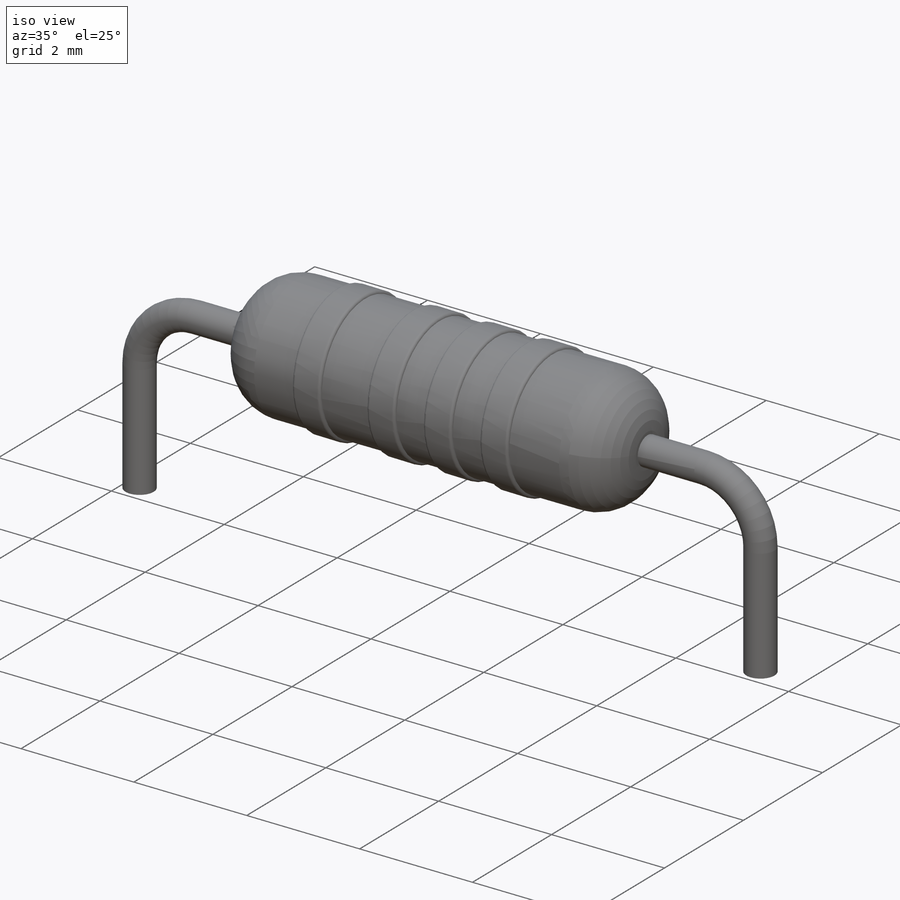
[diagram: iso view]
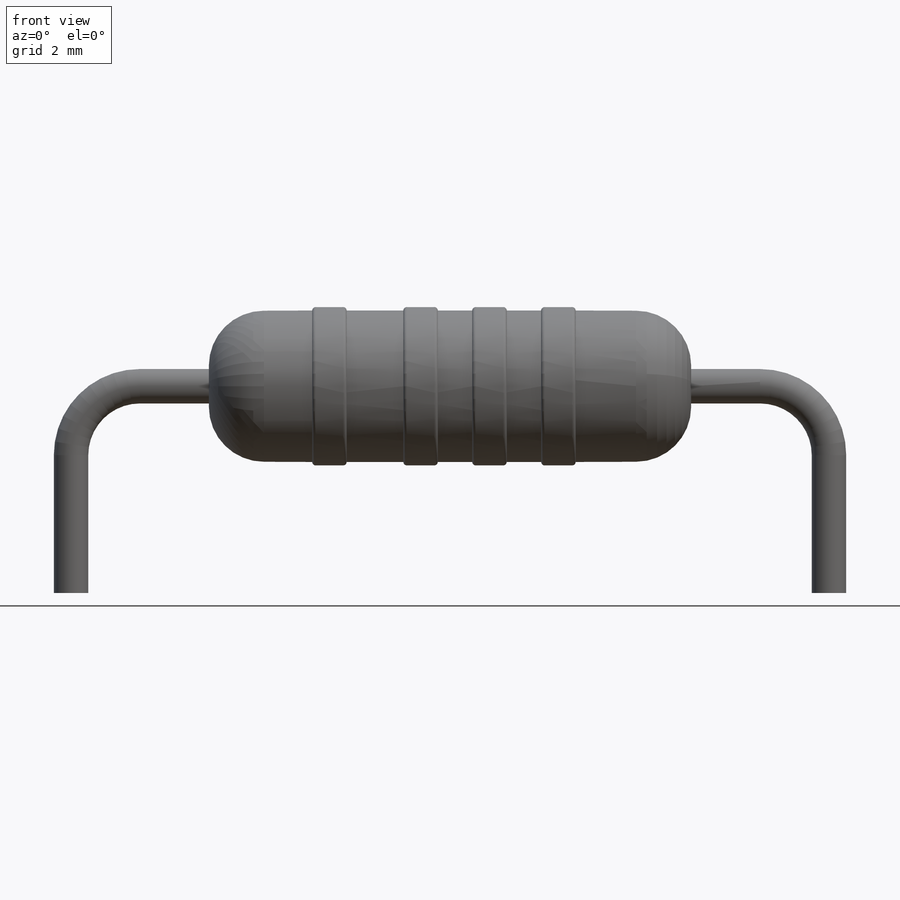
[diagram: front view]
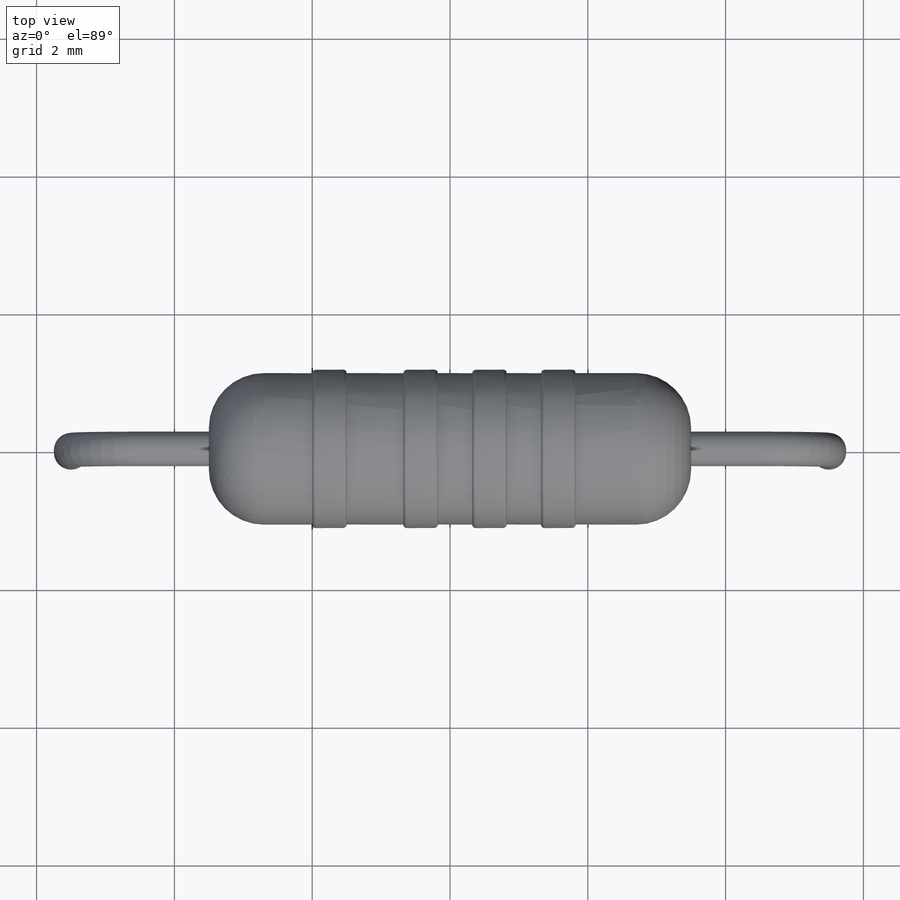
[diagram: top view]
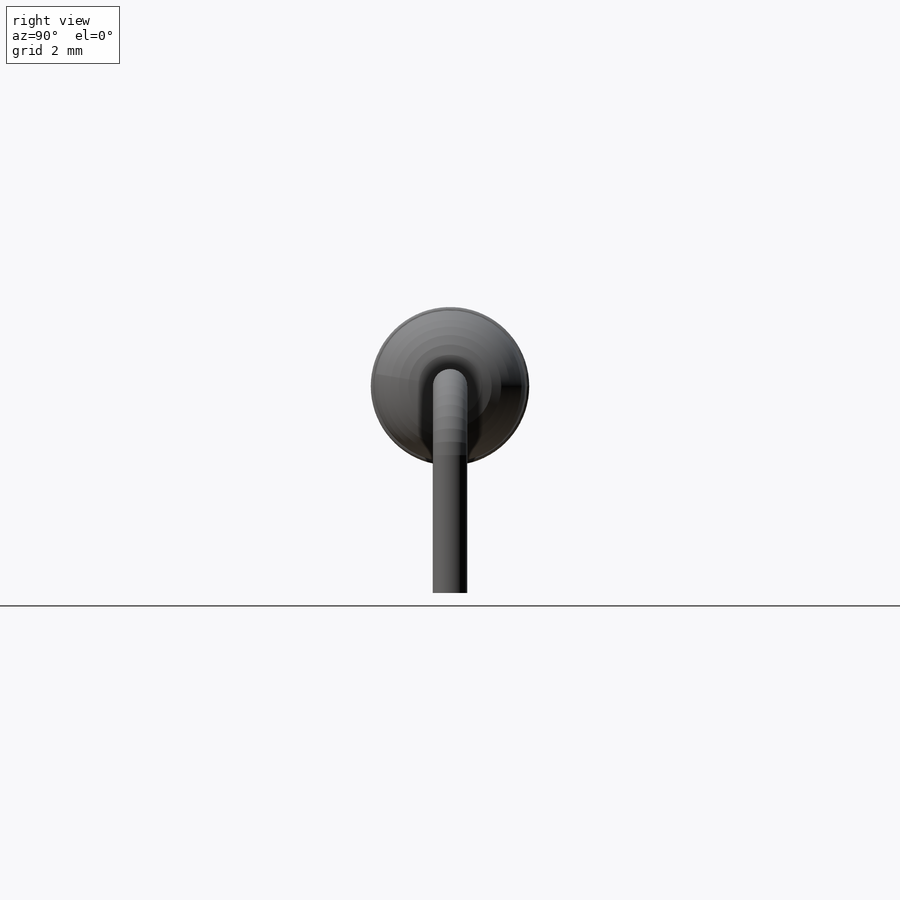
[diagram: right view]
SOLIDWORKS PART (.sldprt)
format: sldprt  version: not decoded by parser v0  size: 351,232 bytes
history: native  units: mm
features: plane x4, sketch x4, revolve x2, material x1, fillet x1, sweep x1, mirror x1 (+8 scaffold rows collapsed)
feature tree (22):
  scaffold x8  (default folders/planes/origin — collapsed)
  material  "Matériau <non spécifié>"
  plane  "Face"
  plane  "Dessus"
  plane  "Droite"
  sketch  "Esquisse1"  dims[D1=0.8mm]
  revolve  "Base-Révolution"  Angle=360deg
  sketch  "Esquisse2"  dims[c1.D1=1.0mm c1.D2=1.0mm c2.D1=0.25mm c2.D2=0.25mm]
  revolve  "Boss.-Révol.1"  Angle=360deg
  fillet  "Congé1"  Radius=0.05mm
  sketch  "Esquisse3"  dims[D1=~0.230252mm]
  sketch  "Esquisse4"  dims[D3=1.0mm D1=3.0mm D2=5.5mm]
  sweep  "Balayage1"
  plane  "Plan1"
  mirror  "Symétrie1"
decode coverage: 7 of 9 modeling features carry decoded parameters
note: ~ marks probable driven/reference dimensions
note: suppression state not decoded; provenance and decode notes live in map.json
